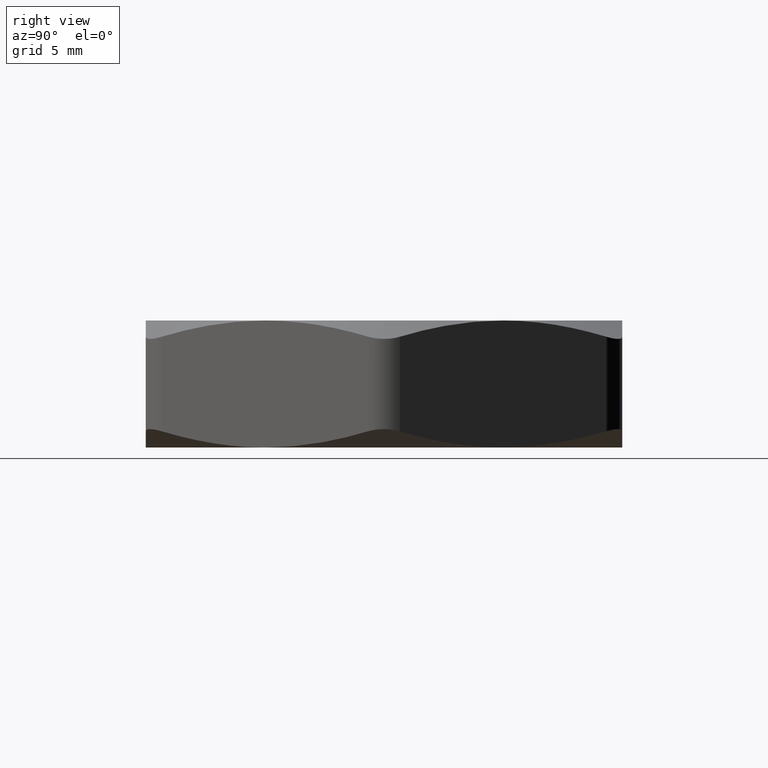
[diagram: clean part render]
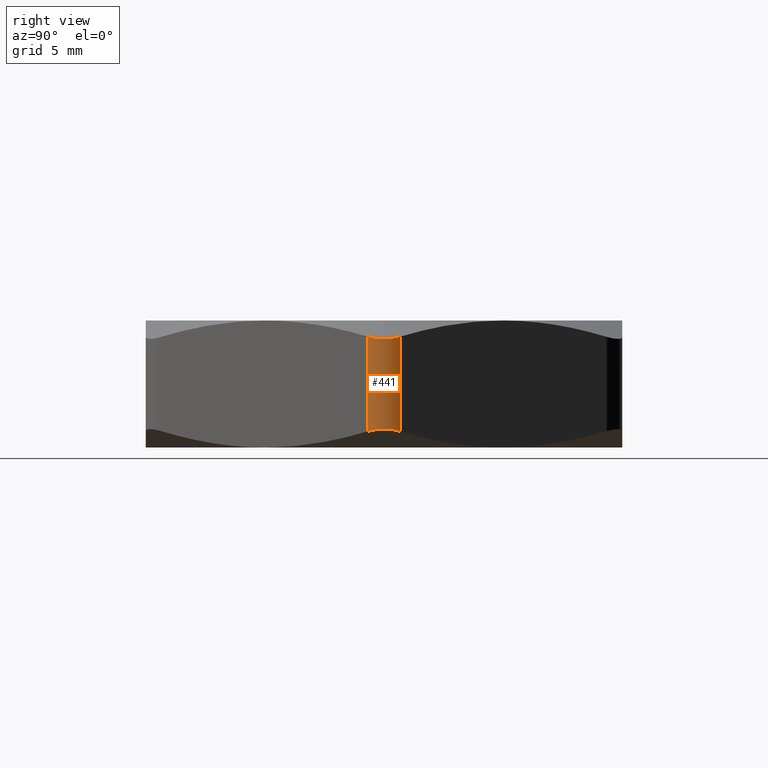
[diagram: same view with one face highlighted and labeled with its STEP entity id]
A machine part, right view. The second image highlights one B-rep face of the part: STEP entity #441.
In plain terms, the highlighted cylindrical surface (edge-blend (fillet) strip) has radius 1.27 mm, axis along (0, 0, -1).
Its self-contained STEP definition (entity closure, byte-faithful):
#226 = VERTEX_POINT ( 'NONE', #1117 ) ;
#254 = EDGE_CURVE ( 'NONE', #226, #255, #1169, .T. ) ;
#255 = VERTEX_POINT ( 'NONE', #1168 ) ;
#357 = VERTEX_POINT ( 'NONE', #1436 ) ;
#363 = EDGE_CURVE ( 'NONE', #595, #357, #1483, .T. ) ;
#441 = ADVANCED_FACE ( 'NONE', ( #1666 ), #1664, .T. ) ;
#442 = EDGE_LOOP ( 'NONE', ( #455, #456, #457, #458, #459 ) ) ;
#455 = ORIENTED_EDGE ( 'NONE', *, *, #481, .F. ) ;
#456 = ORIENTED_EDGE ( 'NONE', *, *, #363, .F. ) ;
#457 = ORIENTED_EDGE ( 'NONE', *, *, #463, .F. ) ;
#458 = ORIENTED_EDGE ( 'NONE', *, *, #598, .F. ) ;
#459 = ORIENTED_EDGE ( 'NONE', *, *, #254, .F. ) ;
#463 = EDGE_CURVE ( 'NONE', #599, #595, #1688, .T. ) ;
#481 = EDGE_CURVE ( 'NONE', #357, #226, #1714, .T. ) ;
#595 = VERTEX_POINT ( 'NONE', #1964 ) ;
#598 = EDGE_CURVE ( 'NONE', #255, #599, #1956, .T. ) ;
#599 = VERTEX_POINT ( 'NONE', #1952 ) ;
#1117 = CARTESIAN_POINT ( 'NONE',  ( 0.4252776749734101800, 1.775217361984067500E-014, 0.1709721708198837000 ) ) ;
#1168 = CARTESIAN_POINT ( 'NONE',  ( 0.4185789451624685200, 0.02500000000001794500, 0.1744090335072158400 ) ) ;
#1169 = B_SPLINE_CURVE_WITH_KNOTS ( 'NONE', 3,
 ( #1308, #1307, #1306, #1305, #1304, #1303 ),
 .UNSPECIFIED., .F., .F.,
 ( 4, 2, 4 ),
 ( 0.0006698882910001496400, 0.001003754490161115600, 0.001337620689322081700 ),
 .UNSPECIFIED. ) ;
#1303 = CARTESIAN_POINT ( 'NONE',  ( 0.4185789451624685200, 0.02500000000001794500, 0.1744090335072158400 ) ) ;
#1304 = CARTESIAN_POINT ( 'NONE',  ( 0.4207294041380171300, 0.02127529579478043200, 0.1732978835875519400 ) ) ;
#1305 = CARTESIAN_POINT ( 'NONE',  ( 0.4224201646834369600, 0.01721831756676461100, 0.1724316452166979300 ) ) ;
#1306 = CARTESIAN_POINT ( 'NONE',  ( 0.4246838449260746900, 0.008826956808419462000, 0.1712742138138430300 ) ) ;
#1307 = CARTESIAN_POINT ( 'NONE',  ( 0.4252776749732543000, 0.004388562669415082800, 0.1709721708199630800 ) ) ;
#1308 = CARTESIAN_POINT ( 'NONE',  ( 0.4252776749734101800, 1.775217361984067500E-014, 0.1709721708198837000 ) ) ;
#1436 = CARTESIAN_POINT ( 'NONE',  ( 0.4185789451624789000, -0.02500000000000004600, 0.1744090335072106800 ) ) ;
#1475 = DIRECTION ( 'NONE',  ( 0.0000000000000000000, 0.0000000000000000000, 1.000000000000000000 ) ) ;
#1476 = VECTOR ( 'NONE', #1475, 39.37007874015748100 ) ;
#1477 = CARTESIAN_POINT ( 'NONE',  ( 0.4185789451624789000, -0.02500000000000007400, 0.2000000000000000100 ) ) ;
#1483 = LINE ( 'NONE', #1477, #1476 ) ;
#1650 = DIRECTION ( 'NONE',  ( -1.000000000000000000, 0.0000000000000000000, 0.0000000000000000000 ) ) ;
#1651 = DIRECTION ( 'NONE',  ( 0.0000000000000000000, 0.0000000000000000000, -1.000000000000000000 ) ) ;
#1652 = AXIS2_PLACEMENT_3D ( 'NONE', #1663, #1651, #1650 ) ;
#1663 = CARTESIAN_POINT ( 'NONE',  ( 0.3752776749732569800, -4.695363739110452100E-017, 0.2000000000000000100 ) ) ;
#1664 = CYLINDRICAL_SURFACE ( 'NONE', #1652, 0.05000000000000001000 ) ;
#1666 = FACE_OUTER_BOUND ( 'NONE', #442, .T. ) ;
#1676 = CARTESIAN_POINT ( 'NONE',  ( 0.4185789451624685200, -0.02500000000001804300, 0.02559096649278417400 ) ) ;
#1677 = CARTESIAN_POINT ( 'NONE',  ( 0.4207328757074451600, -0.02126928286014925100, 0.02670391018491014000 ) ) ;
#1678 = CARTESIAN_POINT ( 'NONE',  ( 0.4224255658445743000, -0.01720531331098209800, 0.02757112303379814400 ) ) ;
#1679 = CARTESIAN_POINT ( 'NONE',  ( 0.4246893983390692700, -0.008799318937460266100, 0.02872861903395091200 ) ) ;
#1680 = CARTESIAN_POINT ( 'NONE',  ( 0.4252813935054713400, -0.004352839928519236200, 0.02902972366464792000 ) ) ;
#1681 = CARTESIAN_POINT ( 'NONE',  ( 0.4252739203053134100, 0.004437852542509121800, 0.02902591628532014800 ) ) ;
#1682 = CARTESIAN_POINT ( 'NONE',  ( 0.4246841792461048500, 0.008842019655327373500, 0.02872597259901712300 ) ) ;
#1683 = CARTESIAN_POINT ( 'NONE',  ( 0.4223943948315135300, 0.01729736066128882400, 0.02755516287873845500 ) ) ;
#1684 = CARTESIAN_POINT ( 'NONE',  ( 0.4207322339030571400, 0.02127039449795203900, 0.02670357856226486900 ) ) ;
#1685 = CARTESIAN_POINT ( 'NONE',  ( 0.4185789451624789000, 0.02500000000000000500, 0.02559096649278931600 ) ) ;
#1688 = B_SPLINE_CURVE_WITH_KNOTS ( 'NONE', 3,
 ( #1685, #1684, #1683, #1682, #1681, #1680, #1679, #1678, #1677, #1676 ),
 .UNSPECIFIED., .F., .F.,
 ( 4, 2, 2, 2, 4 ),
 ( 1.871623136598395600E-018, 0.0003344051723305217800, 0.0006688103446610416100, 0.001003215516991561500, 0.001337620689322081500 ),
 .UNSPECIFIED. ) ;
#1693 = CARTESIAN_POINT ( 'NONE',  ( 0.4252776749734101800, 1.775217361984067500E-014, 0.1709721708198837000 ) ) ;
#1694 = CARTESIAN_POINT ( 'NONE',  ( 0.4252776749732596300, -0.004402731923610942900, 0.1709721708199604100 ) ) ;
#1695 = CARTESIAN_POINT ( 'NONE',  ( 0.4246898574095641100, -0.008813925552657609100, 0.1712711308346965800 ) ) ;
#1696 = CARTESIAN_POINT ( 'NONE',  ( 0.4223997800579580900, -0.01728456736956687800, 0.1724420768014764100 ) ) ;
#1697 = CARTESIAN_POINT ( 'NONE',  ( 0.4207357044380654600, -0.02126438335498859900, 0.1732946281997615200 ) ) ;
#1698 = CARTESIAN_POINT ( 'NONE',  ( 0.4185789451624789000, -0.02500000000000004600, 0.1744090335072106800 ) ) ;
#1714 = B_SPLINE_CURVE_WITH_KNOTS ( 'NONE', 3,
 ( #1698, #1697, #1696, #1695, #1694, #1693 ),
 .UNSPECIFIED., .F., .F.,
 ( 4, 2, 4 ),
 ( 4.336808689942017700E-019, 0.0003349441455000750400, 0.0006698882910001496400 ),
 .UNSPECIFIED. ) ;
#1952 = CARTESIAN_POINT ( 'NONE',  ( 0.4185789451624789000, 0.02500000000000000500, 0.02559096649278931600 ) ) ;
#1953 = DIRECTION ( 'NONE',  ( 0.0000000000000000000, 0.0000000000000000000, -1.000000000000000000 ) ) ;
#1954 = VECTOR ( 'NONE', #1953, 39.37007874015748100 ) ;
#1955 = CARTESIAN_POINT ( 'NONE',  ( 0.4185789451624789000, 0.02499999999999996300, 0.2000000000000000100 ) ) ;
#1956 = LINE ( 'NONE', #1955, #1954 ) ;
#1964 = CARTESIAN_POINT ( 'NONE',  ( 0.4185789451624685200, -0.02500000000001804300, 0.02559096649278417400 ) ) ;